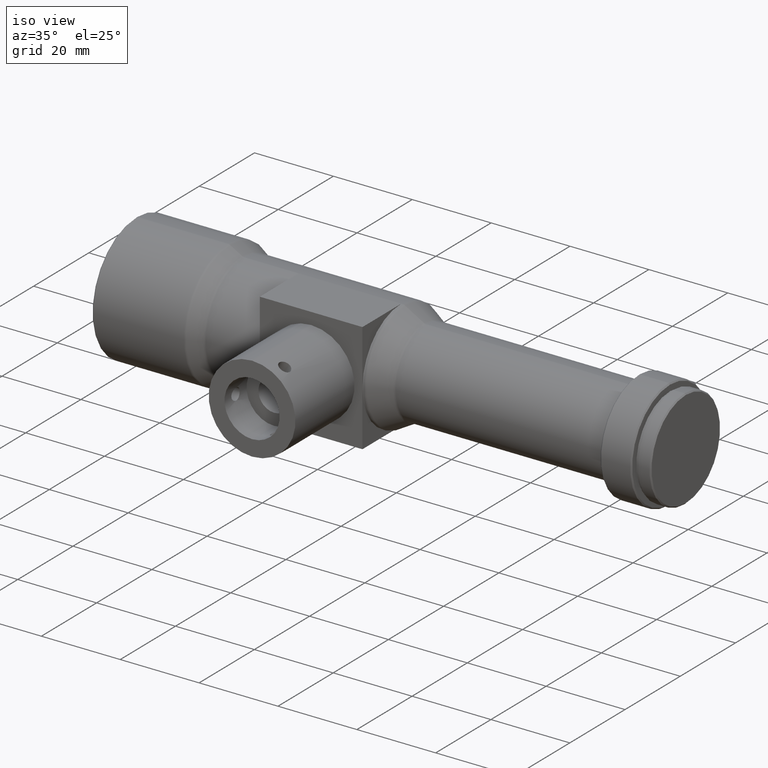
[diagram: clean part render]
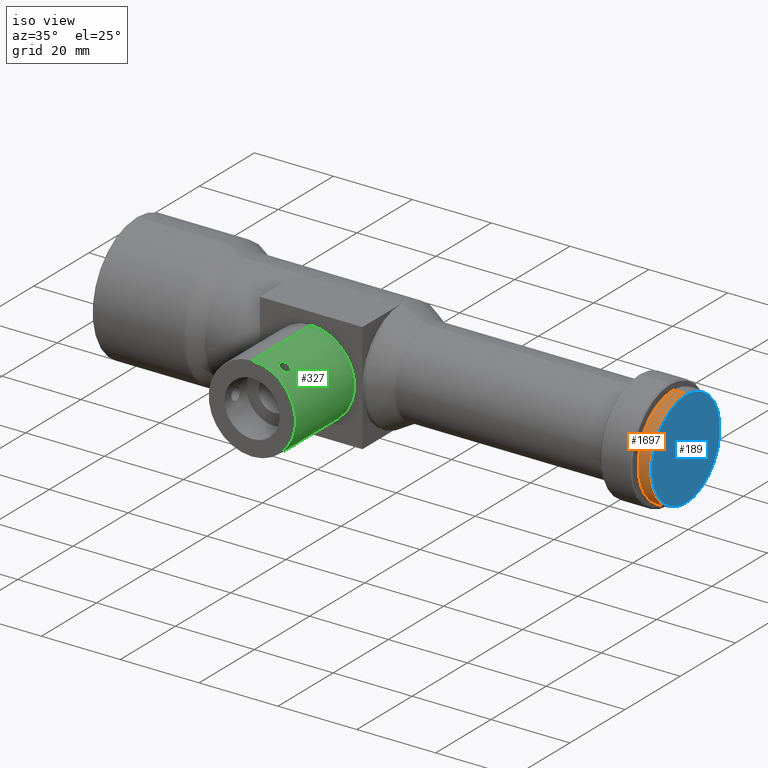
[diagram: same view with three faces highlighted in distinct colors, each labeled with its STEP entity id]
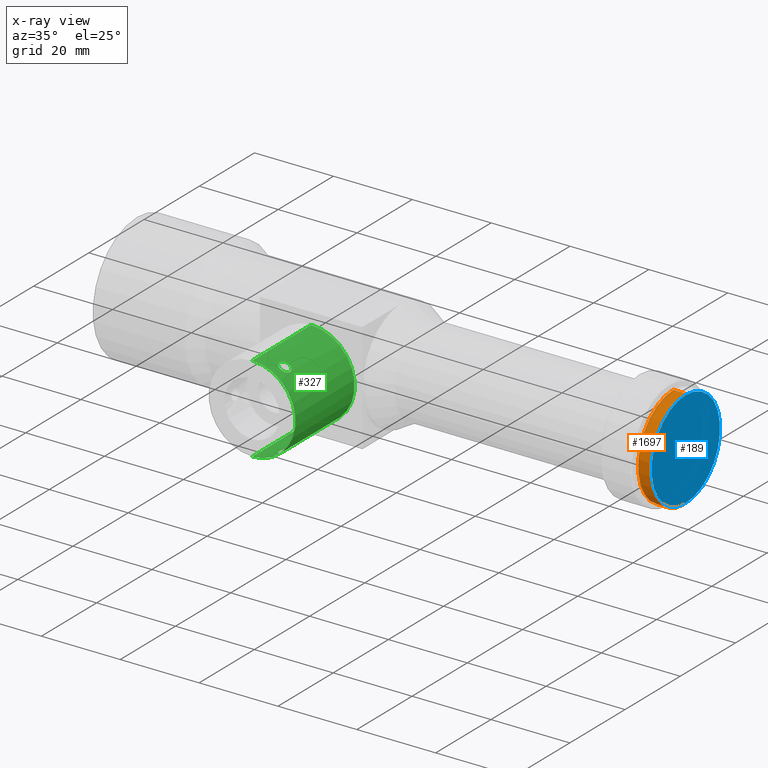
[diagram: x-ray of the same camera — body ghosted, the three highlighted faces saturated]
A machine part, iso view with three faces highlighted in distinct colors.
The next image is the same camera in x-ray (body ghosted, the three faces saturated) — at least one of them is partly hidden behind the body in this view.
Their STEP definitions:

[orange] entity #1697 — the highlighted cylindrical surface (partial cylindrical patch) has radius 12.7 mm, axis along (-1, -0, -0).
#7 = VERTEX_POINT ( 'NONE', #621 ) ;
#21 = VERTEX_POINT ( 'NONE', #312 ) ;
#25 = EDGE_CURVE ( 'NONE', #7, #21, #1884, .T. ) ;
#105 = CARTESIAN_POINT ( 'NONE',  ( 0.0000000000000000000, 0.0000000000000000000, 0.0000000000000000000 ) ) ;
#133 = CARTESIAN_POINT ( 'NONE',  ( 0.0000000000000000000, 1.555301434917140200E-015, -12.70000000000001400 ) ) ;
#142 = AXIS2_PLACEMENT_3D ( 'NONE', #1011, #1318, #1311 ) ;
#175 = ORIENTED_EDGE ( 'NONE', *, *, #1819, .F. ) ;
#299 = LINE ( 'NONE', #1745, #1045 ) ;
#300 = CARTESIAN_POINT ( 'NONE',  ( 136.1999999999999900, 0.0000000000000000000, 0.0000000000000000000 ) ) ;
#312 = CARTESIAN_POINT ( 'NONE',  ( 136.1999999999999900, 0.0000000000000000000, 12.70000000000001400 ) ) ;
#322 = DIRECTION ( 'NONE',  ( 0.0000000000000000000, 0.0000000000000000000, 1.000000000000000000 ) ) ;
#449 = ORIENTED_EDGE ( 'NONE', *, *, #1938, .T. ) ;
#593 = AXIS2_PLACEMENT_3D ( 'NONE', #105, #1626, #717 ) ;
#621 = CARTESIAN_POINT ( 'NONE',  ( 136.1999999999999900, 1.555301434917140200E-015, -12.70000000000001400 ) ) ;
#717 = DIRECTION ( 'NONE',  ( 0.0000000000000000000, 0.0000000000000000000, 1.000000000000000000 ) ) ;
#751 = ORIENTED_EDGE ( 'NONE', *, *, #1002, .T. ) ;
#826 = AXIS2_PLACEMENT_3D ( 'NONE', #300, #1818, #322 ) ;
#923 = VERTEX_POINT ( 'NONE', #1442 ) ;
#948 = CARTESIAN_POINT ( 'NONE',  ( 139.0999999999999900, 1.555301434917140200E-015, -12.70000000000001400 ) ) ;
#981 = EDGE_LOOP ( 'NONE', ( #175, #751, #449, #1825 ) ) ;
#986 = FACE_OUTER_BOUND ( 'NONE', #981, .T. ) ;
#1002 = EDGE_CURVE ( 'NONE', #1258, #923, #1685, .T. ) ;
#1011 = CARTESIAN_POINT ( 'NONE',  ( 139.0999999999999900, 0.0000000000000000000, 0.0000000000000000000 ) ) ;
#1045 = VECTOR ( 'NONE', #1137, 1000.000000000000000 ) ;
#1137 = DIRECTION ( 'NONE',  ( -1.000000000000000000, -0.0000000000000000000, -0.0000000000000000000 ) ) ;
#1258 = VERTEX_POINT ( 'NONE', #948 ) ;
#1311 = DIRECTION ( 'NONE',  ( 0.0000000000000000000, 0.0000000000000000000, 1.000000000000000000 ) ) ;
#1318 = DIRECTION ( 'NONE',  ( -1.000000000000000000, -0.0000000000000000000, -0.0000000000000000000 ) ) ;
#1442 = CARTESIAN_POINT ( 'NONE',  ( 139.0999999999999900, 0.0000000000000000000, 12.70000000000001400 ) ) ;
#1502 = LINE ( 'NONE', #133, #1652 ) ;
#1626 = DIRECTION ( 'NONE',  ( -1.000000000000000000, -0.0000000000000000000, -0.0000000000000000000 ) ) ;
#1652 = VECTOR ( 'NONE', #1924, 1000.000000000000000 ) ;
#1685 = CIRCLE ( 'NONE', #142, 12.70000000000001400 ) ;
#1697 = ADVANCED_FACE ( 'NONE', ( #986 ), #1929, .T. ) ;
#1745 = CARTESIAN_POINT ( 'NONE',  ( 0.0000000000000000000, 0.0000000000000000000, 12.70000000000001400 ) ) ;
#1818 = DIRECTION ( 'NONE',  ( -1.000000000000000000, -0.0000000000000000000, -0.0000000000000000000 ) ) ;
#1819 = EDGE_CURVE ( 'NONE', #1258, #7, #1502, .T. ) ;
#1825 = ORIENTED_EDGE ( 'NONE', *, *, #25, .F. ) ;
#1884 = CIRCLE ( 'NONE', #826, 12.70000000000001400 ) ;
#1924 = DIRECTION ( 'NONE',  ( -1.000000000000000000, -0.0000000000000000000, -0.0000000000000000000 ) ) ;
#1929 = CYLINDRICAL_SURFACE ( 'NONE', #593, 12.70000000000001400 ) ;
#1938 = EDGE_CURVE ( 'NONE', #923, #21, #299, .T. ) ;

[blue] entity #189 — the highlighted planar face has unit normal (-1, 0, -0).
#24 = DIRECTION ( 'NONE',  ( -1.000000000000000000, -0.0000000000000000000, -0.0000000000000000000 ) ) ;
#39 = CARTESIAN_POINT ( 'NONE',  ( 139.4000000000000100, 0.0000000000000000000, 12.40000000000001300 ) ) ;
#78 = DIRECTION ( 'NONE',  ( -1.000000000000000000, 0.0000000000000000000, -0.0000000000000000000 ) ) ;
#82 = DIRECTION ( 'NONE',  ( -0.0000000000000000000, 0.0000000000000000000, 1.000000000000000000 ) ) ;
#189 = ADVANCED_FACE ( 'NONE', ( #1434 ), #1578, .F. ) ;
#230 = CARTESIAN_POINT ( 'NONE',  ( 139.4000000000000100, 12.40000000000001300, 0.0000000000000000000 ) ) ;
#388 = DIRECTION ( 'NONE',  ( 0.0000000000000000000, 0.0000000000000000000, 1.000000000000000000 ) ) ;
#546 = DIRECTION ( 'NONE',  ( -1.000000000000000000, -0.0000000000000000000, -0.0000000000000000000 ) ) ;
#689 = CARTESIAN_POINT ( 'NONE',  ( 139.4000000000000100, 0.0000000000000000000, 0.0000000000000000000 ) ) ;
#745 = AXIS2_PLACEMENT_3D ( 'NONE', #230, #78, #82 ) ;
#885 = EDGE_CURVE ( 'NONE', #1513, #1346, #1803, .T. ) ;
#890 = AXIS2_PLACEMENT_3D ( 'NONE', #1693, #24, #1838 ) ;
#922 = ORIENTED_EDGE ( 'NONE', *, *, #885, .F. ) ;
#1346 = VERTEX_POINT ( 'NONE', #39 ) ;
#1358 = EDGE_LOOP ( 'NONE', ( #1946, #922 ) ) ;
#1362 = CARTESIAN_POINT ( 'NONE',  ( 139.4000000000000100, 1.536931732929930000E-015, -12.40000000000001300 ) ) ;
#1434 = FACE_OUTER_BOUND ( 'NONE', #1358, .T. ) ;
#1479 = EDGE_CURVE ( 'NONE', #1346, #1513, #1644, .T. ) ;
#1513 = VERTEX_POINT ( 'NONE', #1362 ) ;
#1578 = PLANE ( 'NONE',  #745 ) ;
#1591 = AXIS2_PLACEMENT_3D ( 'NONE', #689, #546, #388 ) ;
#1644 = CIRCLE ( 'NONE', #890, 12.40000000000001300 ) ;
#1693 = CARTESIAN_POINT ( 'NONE',  ( 139.4000000000000100, 0.0000000000000000000, 0.0000000000000000000 ) ) ;
#1803 = CIRCLE ( 'NONE', #1591, 12.40000000000001300 ) ;
#1838 = DIRECTION ( 'NONE',  ( 0.0000000000000000000, 0.0000000000000000000, 1.000000000000000000 ) ) ;
#1946 = ORIENTED_EDGE ( 'NONE', *, *, #1479, .F. ) ;

[green] entity #327 — the highlighted cylindrical surface (partial cylindrical patch) has radius 11 mm, axis along (-0, 1, -0).
#33 = B_SPLINE_CURVE_WITH_KNOTS ( 'NONE', 3,
 ( #1875, #496, #1396, #942, #970, #216, #655, #1718, #960, #1243, #45, #1247, #1097, #1104, #56, #1561, #348, #213, #513, #1865, #1418, #354, #1089, #1881 ),
 .UNSPECIFIED., .F., .F.,
 ( 4, 2, 2, 2, 2, 2, 2, 2, 2, 2, 2, 4 ),
 ( 0.004695149309890392900, 0.005281900834582489000, 0.005868652359274586000, 0.006162028121620645800, 0.006455403883966706400, 0.007042155408658851100, 0.007335531171004933500, 0.007628906933351014100, 0.007922282695697096400, 0.008215658458043177000, 0.008802409982735338200, 0.009389161507427499400 ),
 .UNSPECIFIED. ) ;
#44 = CARTESIAN_POINT ( 'NONE',  ( 60.64926865019631900, -30.40821850548932700, -8.911327423372254600 ) ) ;
#45 = CARTESIAN_POINT ( 'NONE',  ( 59.87262697137573800, -32.89986336171182300, 9.426591698289964700 ) ) ;
#56 = CARTESIAN_POINT ( 'NONE',  ( 59.27664814584201000, -32.82352525218519900, 9.758888625443233900 ) ) ;
#86 = CIRCLE ( 'NONE', #200, 10.99999999999999600 ) ;
#90 = VERTEX_POINT ( 'NONE', #1849 ) ;
#101 = CARTESIAN_POINT ( 'NONE',  ( 59.03561216015761200, -32.70129757410585800, -9.880461272423087100 ) ) ;
#108 = ORIENTED_EDGE ( 'NONE', *, *, #109, .T. ) ;
#109 = EDGE_CURVE ( 'NONE', #1124, #90, #1361, .T. ) ;
#112 = CARTESIAN_POINT ( 'NONE',  ( 54.20000000000001000, -2.388061258337338200E-015, 0.0000000000000000000 ) ) ;
#161 = DIRECTION ( 'NONE',  ( 0.0000000000000000000, 0.0000000000000000000, 1.000000000000000000 ) ) ;
#172 = CARTESIAN_POINT ( 'NONE',  ( 59.87015252752552600, -29.90007260186944300, -9.428030402229762100 ) ) ;
#179 = DIRECTION ( 'NONE',  ( -0.0000000000000000000, 1.000000000000000000, -0.0000000000000000000 ) ) ;
#184 = CARTESIAN_POINT ( 'NONE',  ( 58.42113287324904300, -30.91655562173183800, -10.15792673315412600 ) ) ;
#185 = CIRCLE ( 'NONE', #995, 10.99999999999999600 ) ;
#186 = ORIENTED_EDGE ( 'NONE', *, *, #1215, .T. ) ;
#188 = CARTESIAN_POINT ( 'NONE',  ( 54.20000000000001000, -14.00000000000000200, 0.0000000000000000000 ) ) ;
#195 = CARTESIAN_POINT ( 'NONE',  ( 58.35870661146256600, -31.20321567353468200, 10.18359123252691000 ) ) ;
#200 = AXIS2_PLACEMENT_3D ( 'NONE', #858, #1943, #269 ) ;
#213 = CARTESIAN_POINT ( 'NONE',  ( 58.88982207141732800, -32.59360235019547500, 9.950490320075426000 ) ) ;
#216 = CARTESIAN_POINT ( 'NONE',  ( 60.53702998004617100, -32.52912751944312200, 8.991488662073219700 ) ) ;
#233 = CARTESIAN_POINT ( 'NONE',  ( 60.94766178510244700, -31.59841810127737100, -8.687293044088496800 ) ) ;
#254 = CARTESIAN_POINT ( 'NONE',  ( 58.34958557374910300, -31.39999999999999900, -10.18729304408847000 ) ) ;
#269 = DIRECTION ( 'NONE',  ( 0.0000000000000000000, 0.0000000000000000000, 1.000000000000000000 ) ) ;
#271 = EDGE_CURVE ( 'NONE', #1272, #1278, #1281, .T. ) ;
#284 = CARTESIAN_POINT ( 'NONE',  ( 58.34958557374923800, -31.39999999999999900, 10.18729304408841300 ) ) ;
#286 = AXIS2_PLACEMENT_3D ( 'NONE', #112, #1157, #1775 ) ;
#323 = CARTESIAN_POINT ( 'NONE',  ( 60.88630593776016300, -30.91599633703291900, -8.734686888522043400 ) ) ;
#327 = ADVANCED_FACE ( 'NONE', ( #1376, #1665, #862 ), #1629, .T. ) ;
#328 = DIRECTION ( 'NONE',  ( -0.0000000000000000000, 1.000000000000000000, -0.0000000000000000000 ) ) ;
#330 = CARTESIAN_POINT ( 'NONE',  ( 60.65005433060255800, -30.40919774328610400, 8.910765253537377400 ) ) ;
#334 = CARTESIAN_POINT ( 'NONE',  ( 60.70038483493808500, -30.48485314439346200, 8.874006083105989300 ) ) ;
#344 = CARTESIAN_POINT ( 'NONE',  ( 60.11314714618115600, -29.97647740909888700, 9.275935109674421100 ) ) ;
#348 = CARTESIAN_POINT ( 'NONE',  ( 59.03725795262445100, -32.70236198315156200, 9.879657087735354900 ) ) ;
#352 = CARTESIAN_POINT ( 'NONE',  ( 58.63458814662167400, -30.48529139247527200, 10.06664938651005100 ) ) ;
#354 = CARTESIAN_POINT ( 'NONE',  ( 58.38704064851276600, -31.79553721594933400, 10.17223696094320600 ) ) ;
#360 = CARTESIAN_POINT ( 'NONE',  ( 54.20000000000001000, -35.39999999999999900, -10.99999999999999600 ) ) ;
#385 = CARTESIAN_POINT ( 'NONE',  ( 60.94766178510243300, -31.39999999999999900, -8.687293044088496800 ) ) ;
#407 = CARTESIAN_POINT ( 'NONE',  ( 59.52735439613470400, -32.89986336171183000, -9.625934912549166000 ) ) ;
#439 = VECTOR ( 'NONE', #1270, 1000.000000000000000 ) ;
#474 = CARTESIAN_POINT ( 'NONE',  ( 60.47972847528422600, -30.20093862169983700, -9.032402811683656600 ) ) ;
#484 = EDGE_CURVE ( 'NONE', #1249, #1495, #1115, .T. ) ;
#496 = CARTESIAN_POINT ( 'NONE',  ( 60.94766178510256100, -31.59586367319520400, 8.687293044088406200 ) ) ;
#500 = CARTESIAN_POINT ( 'NONE',  ( 59.86987453199952100, -29.90974880891442900, 9.426653228577519500 ) ) ;
#504 = EDGE_LOOP ( 'NONE', ( #108, #1144 ) ) ;
#510 = CARTESIAN_POINT ( 'NONE',  ( 59.03392148188859800, -30.08922164983397700, 9.882604020884493000 ) ) ;
#513 = CARTESIAN_POINT ( 'NONE',  ( 58.81967860306721700, -32.53040760386910100, 9.983155430923607900 ) ) ;
#526 = CARTESIAN_POINT ( 'NONE',  ( 60.33740504234554400, -32.70236198315156200, -9.129016815498765400 ) ) ;
#543 = CARTESIAN_POINT ( 'NONE',  ( 58.38649547942506500, -31.79341330253844000, -10.17245965690976000 ) ) ;
#552 = CARTESIAN_POINT ( 'NONE',  ( 60.03241977164567800, -32.85236912825040900, -9.326955160812856200 ) ) ;
#599 = ORIENTED_EDGE ( 'NONE', *, *, #1078, .T. ) ;
#628 = CARTESIAN_POINT ( 'NONE',  ( 59.35594657326544200, -29.93955945417270900, 9.718481057258825800 ) ) ;
#629 = CARTESIAN_POINT ( 'NONE',  ( 60.03847819515124900, -29.93955945417271300, -9.324421241632640200 ) ) ;
#637 = CARTESIAN_POINT ( 'NONE',  ( 60.93989540339348600, -31.20321567353468200, -8.693341188676358300 ) ) ;
#643 = CARTESIAN_POINT ( 'NONE',  ( 58.39434803132678600, -31.01133206063801100, 10.16896335245271700 ) ) ;
#655 = CARTESIAN_POINT ( 'NONE',  ( 60.47368124009979300, -32.59246174003683900, 9.035905246124297500 ) ) ;
#676 = CARTESIAN_POINT ( 'NONE',  ( 60.53582691157479400, -32.53040760386910800, -8.992336743037457200 ) ) ;
#694 = CARTESIAN_POINT ( 'NONE',  ( 58.52548620453137600, -32.15446949231026300, -10.11414103941169000 ) ) ;
#695 = VERTEX_POINT ( 'NONE', #1125 ) ;
#704 = CARTESIAN_POINT ( 'NONE',  ( 59.35602362545878200, -32.86063671805142400, -9.718461675180954300 ) ) ;
#709 = CARTESIAN_POINT ( 'NONE',  ( 58.34958557374910300, -31.39999999999999900, -10.18729304408847000 ) ) ;
#746 = B_SPLINE_CURVE_WITH_KNOTS ( 'NONE', 3,
 ( #254, #1445, #543, #694, #1294, #1761, #1600, #101, #1741, #704, #407, #1429, #1458, #552, #1267, #1615, #526, #1588, #676, #825, #980, #1129, #233, #385 ),
 .UNSPECIFIED., .F., .F.,
 ( 4, 2, 2, 2, 2, 2, 2, 2, 2, 2, 2, 4 ),
 ( 0.004695149309890392000, 0.005281900834582520200, 0.005868652359274647600, 0.006162028121620704800, 0.006455403883966761100, 0.007042155408658899700, 0.007335531171004976000, 0.007628906933351052200, 0.007922282695697129400, 0.008215658458043204700, 0.008802409982735348600, 0.009389161507427492400 ),
 .UNSPECIFIED. ) ;
#764 = CARTESIAN_POINT ( 'NONE',  ( 60.78875374529663100, -30.64826890565132100, -8.808593871039821700 ) ) ;
#769 = CARTESIAN_POINT ( 'NONE',  ( 60.94766178510243300, -31.39999999999999900, -8.687293044088496800 ) ) ;
#772 = CARTESIAN_POINT ( 'NONE',  ( 58.63492228383835700, -30.48485314439347200, -10.06650144298450800 ) ) ;
#774 = CARTESIAN_POINT ( 'NONE',  ( 54.20000000000001000, -14.00000000000000200, -10.99999999999999600 ) ) ;
#775 = ORIENTED_EDGE ( 'NONE', *, *, #271, .F. ) ;
#786 = CARTESIAN_POINT ( 'NONE',  ( 60.94766178510243300, -31.30076691622456800, -8.687293044088496800 ) ) ;
#795 = CARTESIAN_POINT ( 'NONE',  ( 60.70068002639785500, -30.48529139247525800, -8.873790683550762300 ) ) ;
#800 = CARTESIAN_POINT ( 'NONE',  ( 58.88242605448987600, -30.20093862169983400, 9.954605794306496900 ) ) ;
#825 = CARTESIAN_POINT ( 'NONE',  ( 60.70537590498901900, -32.32331961283483700, -8.871266840156250700 ) ) ;
#845 = CARTESIAN_POINT ( 'NONE',  ( 54.20000000000001000, -2.388061258337338200E-015, 10.99999999999999600 ) ) ;
#858 = CARTESIAN_POINT ( 'NONE',  ( 54.20000000000001000, -35.39999999999999900, 0.0000000000000000000 ) ) ;
#862 = FACE_OUTER_BOUND ( 'NONE', #1748, .T. ) ;
#917 = CARTESIAN_POINT ( 'NONE',  ( 58.49107385563423400, -30.73497715677631000, -10.12857953590942900 ) ) ;
#926 = CARTESIAN_POINT ( 'NONE',  ( 59.35952932196858700, -29.94810683366361200, -9.715375724912256300 ) ) ;
#937 = CARTESIAN_POINT ( 'NONE',  ( 60.94766178510254700, -31.39999999999999900, 8.687293044088402600 ) ) ;
#938 = CARTESIAN_POINT ( 'NONE',  ( 59.27662187574343000, -29.97647740909889400, -9.758903199745578400 ) ) ;
#942 = CARTESIAN_POINT ( 'NONE',  ( 60.79635997532356100, -32.15446949231026300, 8.803051456549177100 ) ) ;
#945 = CARTESIAN_POINT ( 'NONE',  ( 58.34958557374911700, -31.30204443966746900, -10.18729304408847500 ) ) ;
#960 = CARTESIAN_POINT ( 'NONE',  ( 60.26721853693850100, -32.74742744631979000, 9.175899327291709500 ) ) ;
#964 = CARTESIAN_POINT ( 'NONE',  ( 60.82607025453165100, -30.73497715677631000, 8.780468736449218900 ) ) ;
#970 = CARTESIAN_POINT ( 'NONE',  ( 60.70646781548144600, -32.32160132830936300, 8.870464806248023100 ) ) ;
#980 = CARTESIAN_POINT ( 'NONE',  ( 60.79552583602178100, -32.15624787785039700, -8.803678386234176800 ) ) ;
#995 = AXIS2_PLACEMENT_3D ( 'NONE', #188, #179, #161 ) ;
#1073 = CARTESIAN_POINT ( 'NONE',  ( 59.52878390261494000, -29.90974880891443300, -9.623581995270774000 ) ) ;
#1078 = EDGE_CURVE ( 'NONE', #1627, #695, #746, .T. ) ;
#1081 = CARTESIAN_POINT ( 'NONE',  ( 54.20000000000001000, -2.388061258337338200E-015, -10.99999999999999600 ) ) ;
#1084 = CARTESIAN_POINT ( 'NONE',  ( 58.34958557374910300, -31.39999999999999900, -10.18729304408847000 ) ) ;
#1087 = EDGE_LOOP ( 'NONE', ( #186, #599 ) ) ;
#1089 = CARTESIAN_POINT ( 'NONE',  ( 58.34958557374924500, -31.59841810127737800, 10.18729304408841500 ) ) ;
#1094 = CARTESIAN_POINT ( 'NONE',  ( 58.53408919129204000, -30.64826890565133200, 10.11032505822666600 ) ) ;
#1097 = CARTESIAN_POINT ( 'NONE',  ( 59.52990570779150700, -32.89039962069107800, 9.622957867025546000 ) ) ;
#1101 = CARTESIAN_POINT ( 'NONE',  ( 60.90915269124379700, -31.01006905628706500, 8.717089312082974200 ) ) ;
#1104 = CARTESIAN_POINT ( 'NONE',  ( 59.36117022339941200, -32.85236912825042300, 9.714501268186255700 ) ) ;
#1115 = LINE ( 'NONE', #1081, #1499 ) ;
#1124 = VERTEX_POINT ( 'NONE', #284 ) ;
#1125 = CARTESIAN_POINT ( 'NONE',  ( 60.94766178510243300, -31.39999999999999900, -8.687293044088496800 ) ) ;
#1129 = CARTESIAN_POINT ( 'NONE',  ( 60.91589529723543700, -31.79553721594934100, -8.712202048761774600 ) ) ;
#1141 = EDGE_CURVE ( 'NONE', #1272, #1249, #86, .T. ) ;
#1144 = ORIENTED_EDGE ( 'NONE', *, *, #1235, .T. ) ;
#1157 = DIRECTION ( 'NONE',  ( -0.0000000000000000000, 1.000000000000000000, -0.0000000000000000000 ) ) ;
#1214 = CARTESIAN_POINT ( 'NONE',  ( 60.82583754019210400, -30.73438563507981800, -8.780644567731162200 ) ) ;
#1215 = EDGE_CURVE ( 'NONE', #695, #1627, #1956, .T. ) ;
#1219 = CARTESIAN_POINT ( 'NONE',  ( 60.88645616406800800, -30.91655562173182400, 8.734571667560334900 ) ) ;
#1235 = EDGE_CURVE ( 'NONE', #90, #1124, #33, .T. ) ;
#1242 = CARTESIAN_POINT ( 'NONE',  ( 59.78436017164893500, -29.89996385310580600, 9.477579765477793600 ) ) ;
#1243 = CARTESIAN_POINT ( 'NONE',  ( 60.03842288368275600, -32.86063671805142400, 9.324478279750543700 ) ) ;
#1244 = CARTESIAN_POINT ( 'NONE',  ( 58.34958557374923800, -31.39999999999999900, 10.18729304408841300 ) ) ;
#1247 = CARTESIAN_POINT ( 'NONE',  ( 59.61502556372698100, -32.90006778784022100, 9.575350129099485100 ) ) ;
#1249 = VERTEX_POINT ( 'NONE', #360 ) ;
#1252 = CARTESIAN_POINT ( 'NONE',  ( 60.34213382225432600, -30.08936470400685100, 9.127284231064809500 ) ) ;
#1261 = CARTESIAN_POINT ( 'NONE',  ( 54.20000000000001000, -35.39999999999999900, 10.99999999999999600 ) ) ;
#1267 = CARTESIAN_POINT ( 'NONE',  ( 60.11312138941579500, -32.82352525218519900, -9.275950573095993700 ) ) ;
#1270 = DIRECTION ( 'NONE',  ( -0.0000000000000000000, 1.000000000000000000, -0.0000000000000000000 ) ) ;
#1272 = VERTEX_POINT ( 'NONE', #1261 ) ;
#1278 = VERTEX_POINT ( 'NONE', #1708 ) ;
#1281 = LINE ( 'NONE', #845, #439 ) ;
#1294 = CARTESIAN_POINT ( 'NONE',  ( 58.62881395784585000, -32.32160132830935600, -10.06999882023677300 ) ) ;
#1361 = B_SPLINE_CURVE_WITH_KNOTS ( 'NONE', 3,
 ( #1244, #1712, #195, #643, #1545, #1862, #1094, #352, #1405, #800, #510, #628, #1874, #1242, #500, #1565, #344, #1252, #1392, #330, #334, #1559, #964, #1219, #1101, #1571, #1382, #937 ),
 .UNSPECIFIED., .F., .F.,
 ( 4, 2, 2, 2, 2, 2, 2, 2, 2, 2, 2, 2, 2, 4 ),
 ( 0.0000000000000000000, 0.0002934468318681457600, 0.0005868936637362915200, 0.0008803404956044373400, 0.001173787327472583000, 0.001760680991208888100, 0.002347574654945193400, 0.002641021486813338200, 0.002934468318681482700, 0.003521361982417772300, 0.003814808814285927600, 0.004108255646154082400, 0.004401702478022237600, 0.004695149309890392900 ),
 .UNSPECIFIED. ) ;
#1371 = CARTESIAN_POINT ( 'NONE',  ( 58.88380869576212700, -30.19939202166432300, -9.953978560706245200 ) ) ;
#1376 = FACE_BOUND ( 'NONE', #504, .T. ) ;
#1382 = CARTESIAN_POINT ( 'NONE',  ( 60.94766178510254000, -31.30204443966746200, 8.687293044088400900 ) ) ;
#1392 = CARTESIAN_POINT ( 'NONE',  ( 60.47849395441618700, -30.19939202166430900, 9.033286597349588800 ) ) ;
#1395 = ORIENTED_EDGE ( 'NONE', *, *, #484, .T. ) ;
#1396 = CARTESIAN_POINT ( 'NONE',  ( 60.91636074214361000, -31.79341330253844000, 8.711841266465720300 ) ) ;
#1405 = CARTESIAN_POINT ( 'NONE',  ( 58.69280160498311700, -30.40821850548934100, 10.04089419858674100 ) ) ;
#1418 = CARTESIAN_POINT ( 'NONE',  ( 58.52644621121586300, -32.15624787785039000, 10.11373211842855500 ) ) ;
#1429 = CARTESIAN_POINT ( 'NONE',  ( 59.78498368006722800, -32.90006778784020700, -9.477224764879475000 ) ) ;
#1445 = CARTESIAN_POINT ( 'NONE',  ( 58.34958557374910300, -31.59586367319519000, -10.18729304408847200 ) ) ;
#1458 = CARTESIAN_POINT ( 'NONE',  ( 59.86877311849565300, -32.89039962069108500, -9.427312676235912300 ) ) ;
#1495 = VERTEX_POINT ( 'NONE', #774 ) ;
#1499 = VECTOR ( 'NONE', #328, 1000.000000000000000 ) ;
#1531 = CARTESIAN_POINT ( 'NONE',  ( 58.69192191142171600, -30.40919774328610000, -10.04129353286036200 ) ) ;
#1540 = CARTESIAN_POINT ( 'NONE',  ( 60.34162539668389500, -30.08922164983398100, -9.127600813657114300 ) ) ;
#1545 = CARTESIAN_POINT ( 'NONE',  ( 58.42130777068283700, -30.91599633703291500, 10.15785424383607000 ) ) ;
#1559 = CARTESIAN_POINT ( 'NONE',  ( 60.78824214494905900, -30.64721519970989400, 8.808975672847122200 ) ) ;
#1561 = CARTESIAN_POINT ( 'NONE',  ( 59.11467026787140400, -32.74836715794372600, 9.841457196908768500 ) ) ;
#1565 = CARTESIAN_POINT ( 'NONE',  ( 60.03399752410034300, -29.94810683366359400, 9.325971326851636400 ) ) ;
#1571 = CARTESIAN_POINT ( 'NONE',  ( 60.93984004300466500, -31.20253577358010900, 8.693384387220326900 ) ) ;
#1588 = CARTESIAN_POINT ( 'NONE',  ( 60.47246636158777700, -32.59360235019547500, -9.036750213114091300 ) ) ;
#1596 = ORIENTED_EDGE ( 'NONE', *, *, #1704, .F. ) ;
#1600 = CARTESIAN_POINT ( 'NONE',  ( 58.88848286928281100, -32.59246174003683200, -9.951119952234435600 ) ) ;
#1615 = CARTESIAN_POINT ( 'NONE',  ( 60.26561680884447000, -32.74836715794374000, -9.176957901655109500 ) ) ;
#1627 = VERTEX_POINT ( 'NONE', #709 ) ;
#1629 = CYLINDRICAL_SURFACE ( 'NONE', #286, 10.99999999999999600 ) ;
#1665 = FACE_BOUND ( 'NONE', #1087, .T. ) ;
#1692 = CARTESIAN_POINT ( 'NONE',  ( 59.03339310053606000, -30.08936470400684700, -9.882886039048264200 ) ) ;
#1700 = CARTESIAN_POINT ( 'NONE',  ( 60.90940657771360400, -31.01133206063801500, -8.716893623668630300 ) ) ;
#1704 = EDGE_CURVE ( 'NONE', #1278, #1495, #185, .T. ) ;
#1708 = CARTESIAN_POINT ( 'NONE',  ( 54.20000000000001000, -14.00000000000000200, 10.99999999999999600 ) ) ;
#1712 = CARTESIAN_POINT ( 'NONE',  ( 58.34958557374923800, -31.30076691622456800, 10.18729304408841300 ) ) ;
#1718 = CARTESIAN_POINT ( 'NONE',  ( 60.33892438294788700, -32.70129757410585800, 9.127993609756995100 ) ) ;
#1741 = CARTESIAN_POINT ( 'NONE',  ( 59.11295265153386700, -32.74742744631977600, -9.842315046946467300 ) ) ;
#1743 = ORIENTED_EDGE ( 'NONE', *, *, #1141, .T. ) ;
#1748 = EDGE_LOOP ( 'NONE', ( #1743, #1395, #1596, #775 ) ) ;
#1761 = CARTESIAN_POINT ( 'NONE',  ( 58.81834260917207000, -32.52912751944311500, -9.983773278300194700 ) ) ;
#1775 = DIRECTION ( 'NONE',  ( 0.0000000000000000000, 0.0000000000000000000, 1.000000000000000000 ) ) ;
#1826 = CARTESIAN_POINT ( 'NONE',  ( 59.61564475747262300, -29.89996385310579500, -9.574987655268923700 ) ) ;
#1836 = CARTESIAN_POINT ( 'NONE',  ( 58.35877170269347400, -31.20253577358012000, -10.18356488829582500 ) ) ;
#1845 = CARTESIAN_POINT ( 'NONE',  ( 58.39464444569974700, -31.01006905628706900, -10.16884132452737100 ) ) ;
#1849 = CARTESIAN_POINT ( 'NONE',  ( 60.94766178510254700, -31.39999999999999900, 8.687293044088402600 ) ) ;
#1862 = CARTESIAN_POINT ( 'NONE',  ( 58.49134248716094200, -30.73438563507982500, 10.12846591502055400 ) ) ;
#1863 = CARTESIAN_POINT ( 'NONE',  ( 58.53467564153014300, -30.64721519970989400, -10.11007290023272600 ) ) ;
#1865 = CARTESIAN_POINT ( 'NONE',  ( 58.63005449483129200, -32.32331961283483700, 10.06945421496579500 ) ) ;
#1874 = CARTESIAN_POINT ( 'NONE',  ( 59.52983757222021000, -29.90007260186943200, 9.624511333284527100 ) ) ;
#1875 = CARTESIAN_POINT ( 'NONE',  ( 60.94766178510254700, -31.39999999999999900, 8.687293044088402600 ) ) ;
#1881 = CARTESIAN_POINT ( 'NONE',  ( 58.34958557374923800, -31.39999999999999900, 10.18729304408841300 ) ) ;
#1943 = DIRECTION ( 'NONE',  ( -0.0000000000000000000, 1.000000000000000000, -0.0000000000000000000 ) ) ;
#1956 = B_SPLINE_CURVE_WITH_KNOTS ( 'NONE', 3,
 ( #769, #786, #637, #1700, #323, #1214, #764, #795, #44, #474, #1540, #629, #172, #1826, #1073, #926, #938, #1692, #1371, #1531, #772, #1863, #917, #184, #1845, #1836, #945, #1084 ),
 .UNSPECIFIED., .F., .F.,
 ( 4, 2, 2, 2, 2, 2, 2, 2, 2, 2, 2, 2, 2, 4 ),
 ( 0.0000000000000000000, 0.0002934468318681478200, 0.0005868936637362956400, 0.0008803404956044434100, 0.001173787327472591300, 0.001760680991208892000, 0.002347574654945193000, 0.002641021486813345200, 0.002934468318681496500, 0.003521361982417800100, 0.003814808814285948400, 0.004108255646154095400, 0.004401702478022243700, 0.004695149309890392000 ),
 .UNSPECIFIED. ) ;